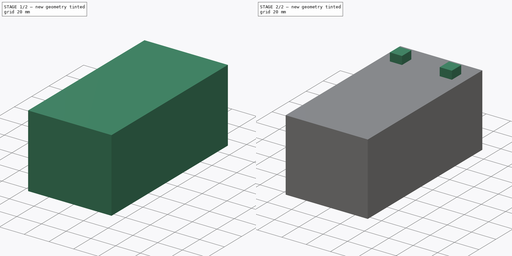
[diagram: build sequence overview — one tinted view per stage of 2, left to right]
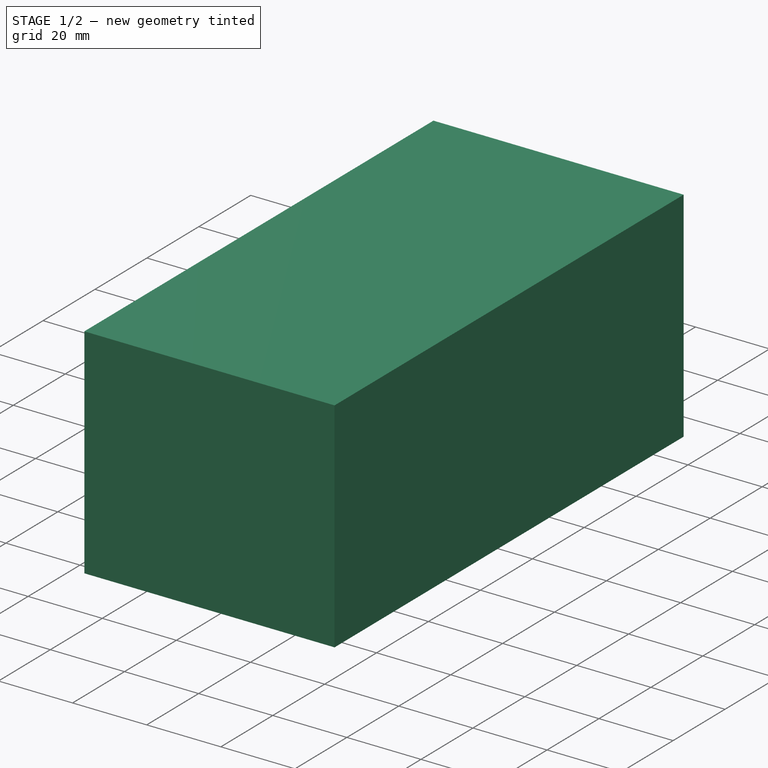
[diagram: stage 1 of 2 — iso view after this stage's code; geometry added in this stage tinted green]
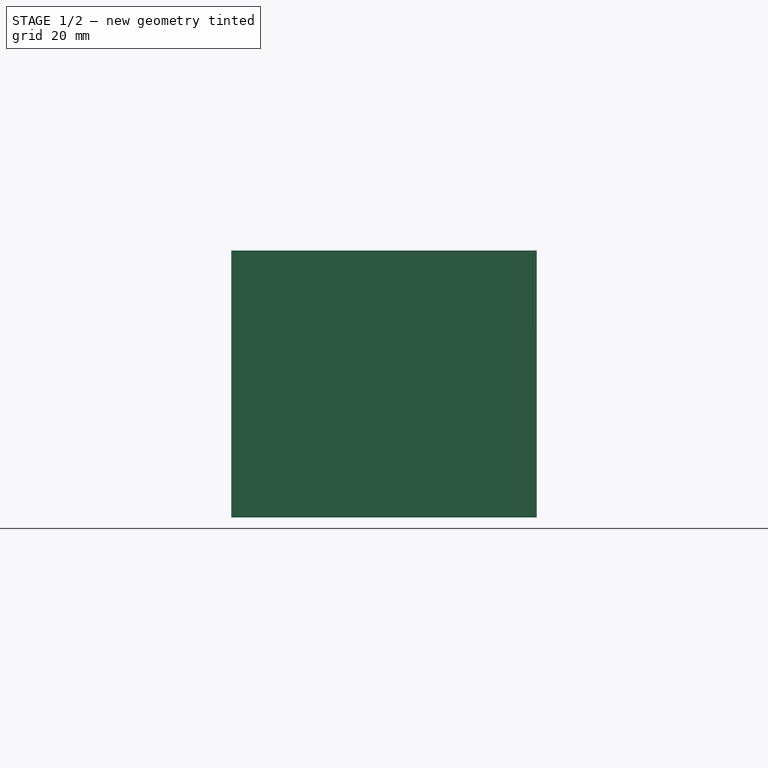
[diagram: stage 1 of 2 — front view after this stage's code; geometry added in this stage tinted green]
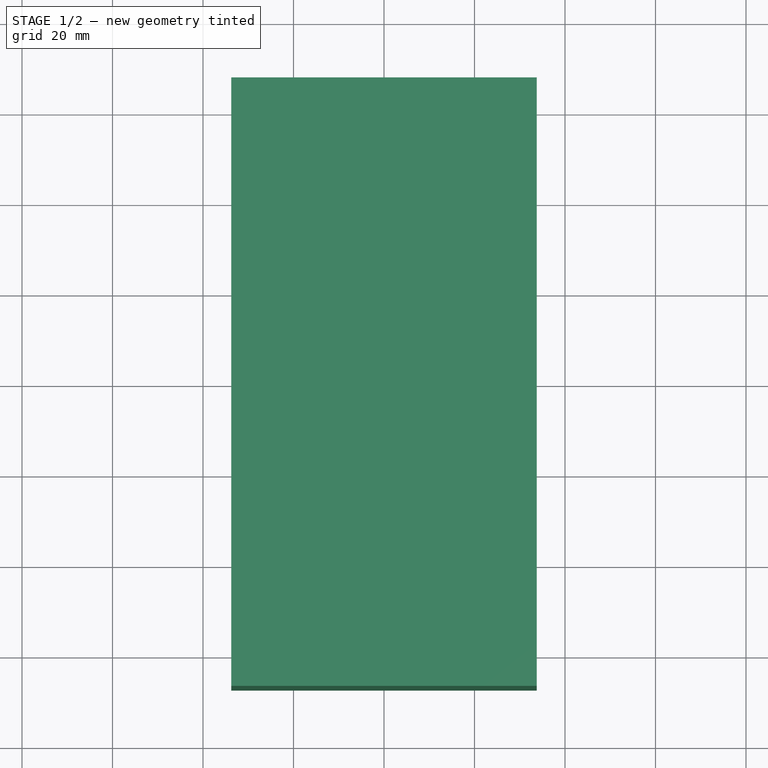
[diagram: stage 1 of 2 — top view after this stage's code; geometry added in this stage tinted green]
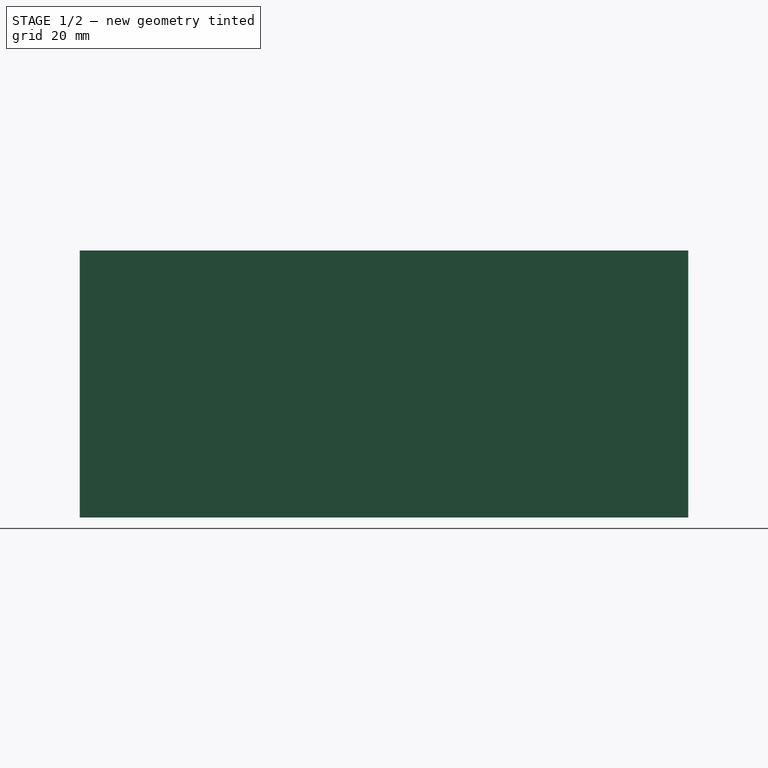
[diagram: stage 1 of 2 — right view after this stage's code; geometry added in this stage tinted green]
FCSTD DOCUMENT  (FreeCAD 0.18.4R)
Label: Battery_Lead_Acid_3.2Ah
License: All rights reserved
LicenseURL: http://en.wikipedia.org/wiki/All_rights_reserved
objects: Sketcher::SketchObject×2, PartDesign::Pad×2, PartDesign::Body×1, App::Part×1
note: 7 computed .brp shape members not serialized (recipe doc carries the construction recipe); baked Part::Feature solids carry a one-line shape summary decoded from their .brp

FEATURE [Sketcher::SketchObject] Sketch
  MapMode = 5
  Support = -> [XY_Plane001]
  sketch-geometry (4):
    g0: LineSegment StartX=-33.75 StartY=67.25 StartZ=0 EndX=33.75 EndY=67.25 EndZ=0
    g1: LineSegment StartX=33.75 StartY=67.25 StartZ=0 EndX=33.75 EndY=-67.25 EndZ=0
    g2: LineSegment StartX=33.75 StartY=-67.25 StartZ=0 EndX=-33.75 EndY=-67.25 EndZ=0
    g3: LineSegment StartX=-33.75 StartY=-67.25 StartZ=0 EndX=-33.75 EndY=67.25 EndZ=0
  constraints (11):
    c: Coincident(g0,g1)
    c: Coincident(g1,g2)
    c: Coincident(g2,g3)
    c: Coincident(g3,g0)
    c: Horizontal(g0)
    c: Horizontal(g2)
    c: Vertical(g1)
    c: Vertical(g3)
    c: Symmetric(g0,g1,g-1)
    c: DistanceX(g0,g0) = 67.5
    c: DistanceY(g3,g3) = 134.5
FEATURE [PartDesign::Pad] Pad
  Length = 59
  Length2 = 100
  Profile = -> Sketch
  Type = 0
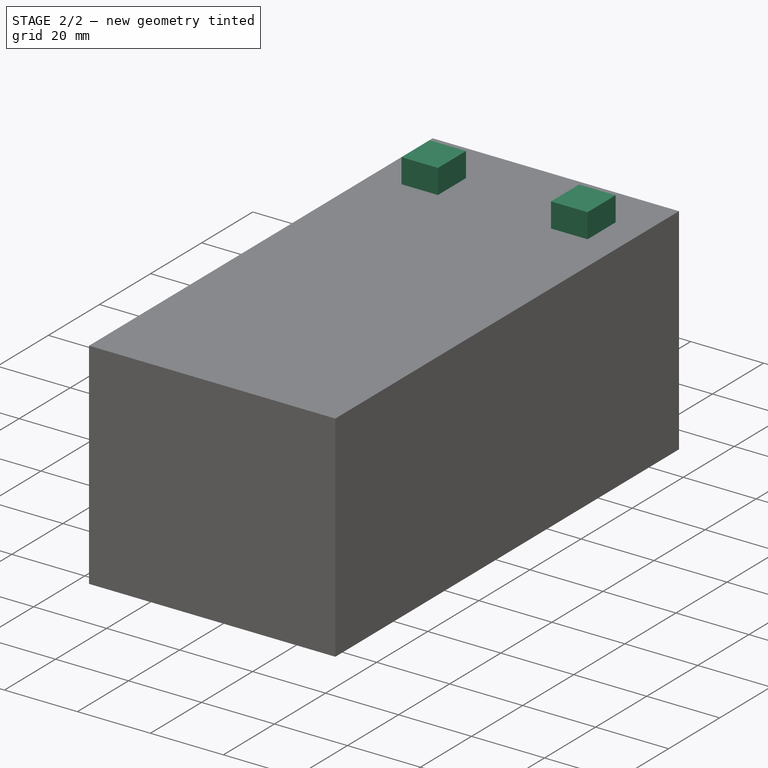
[diagram: stage 2 of 2 — iso view after this stage's code; geometry added in this stage tinted green]
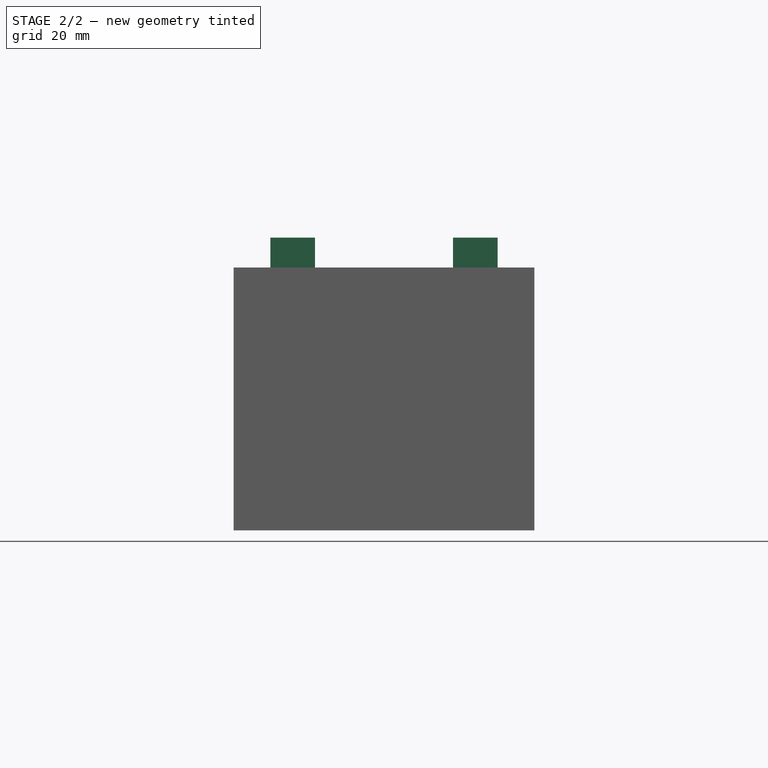
[diagram: stage 2 of 2 — front view after this stage's code; geometry added in this stage tinted green]
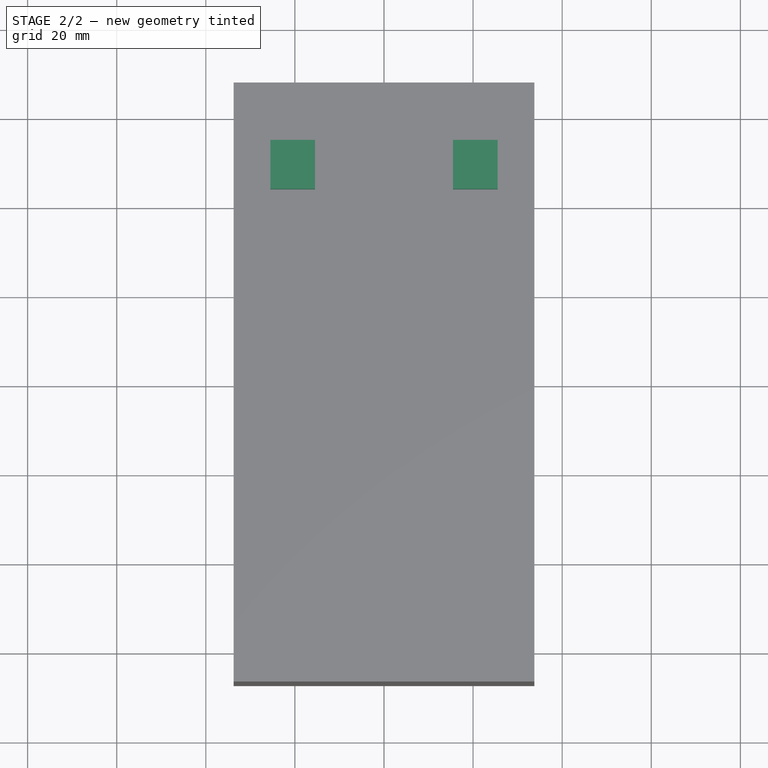
[diagram: stage 2 of 2 — top view after this stage's code; geometry added in this stage tinted green]
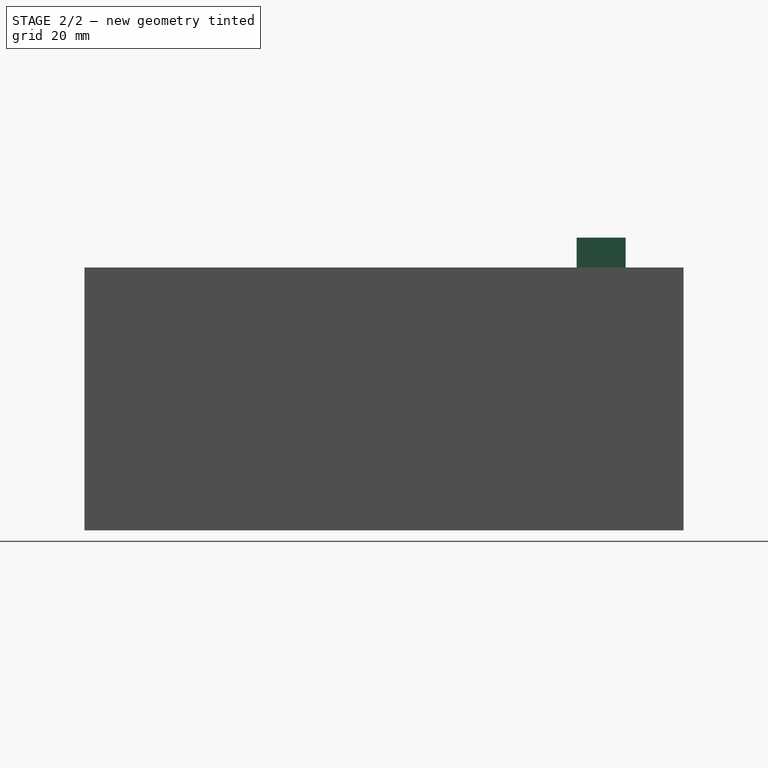
[diagram: stage 2 of 2 — right view after this stage's code; geometry added in this stage tinted green]
FEATURE [Sketcher::SketchObject] Sketch001
  MapMode = 5
  Placement = pos=(0,0,59) rot=(0,0,1;0rad)
  Support = -> [Pad]
  sketch-geometry (8):
    g0: LineSegment StartX=-25.5 StartY=54.25 StartZ=0 EndX=-15.5 EndY=54.25 EndZ=0
    g1: LineSegment StartX=-15.5 StartY=54.25 StartZ=0 EndX=-15.5 EndY=43.25 EndZ=0
    g2: LineSegment StartX=-15.5 StartY=43.25 StartZ=0 EndX=-25.5 EndY=43.25 EndZ=0
    g3: LineSegment StartX=-25.5 StartY=43.25 StartZ=0 EndX=-25.5 EndY=54.25 EndZ=0
    g4: LineSegment StartX=15.5 StartY=54.25 StartZ=0 EndX=25.5 EndY=54.25 EndZ=0
    g5: LineSegment StartX=25.5 StartY=54.25 StartZ=0 EndX=25.5 EndY=43.25 EndZ=0
    g6: LineSegment StartX=25.5 StartY=43.25 StartZ=0 EndX=15.5 EndY=43.25 EndZ=0
    g7: LineSegment StartX=15.5 StartY=43.25 StartZ=0 EndX=15.5 EndY=54.25 EndZ=0
  constraints (22):
    c: Coincident(g0,g1)
    c: Coincident(g1,g2)
    c: Coincident(g2,g3)
    c: Coincident(g3,g0)
    c: Horizontal(g0)
    c: Horizontal(g2)
    c: Vertical(g1)
    c: Vertical(g3)
    c: Coincident(g4,g5)
    c: Coincident(g5,g6)
    c: Coincident(g6,g7)
    c: Coincident(g7,g4)
    c: Horizontal(g4)
    c: Horizontal(g6)
    c: Vertical(g5)
    c: Vertical(g7)
    c: Symmetric(g1,g6,g-2)
    c: Symmetric(g0,g4,g-2)
    c: DistanceX(g0,g4) = 31
    c: DistanceX(g0,g4) = 51
    c: DistanceY(g3,g3) = 11
    c: DistanceY(g-1,g0) = 54.25
FEATURE [PartDesign::Pad] Pad001
  BaseFeature = -> Pad
  Length = 6.7
  Length2 = 100
  Profile = -> Sketch001
  Type = 0
FEATURE [PartDesign::Body] Body
  Group = -> [Sketch,Pad,Sketch001,Pad001]
  Origin = -> Origin001
  Tip = -> Pad001
FEATURE [App::Part] Part  label="Battery"
  Group = -> [Body]
  Origin = -> Origin
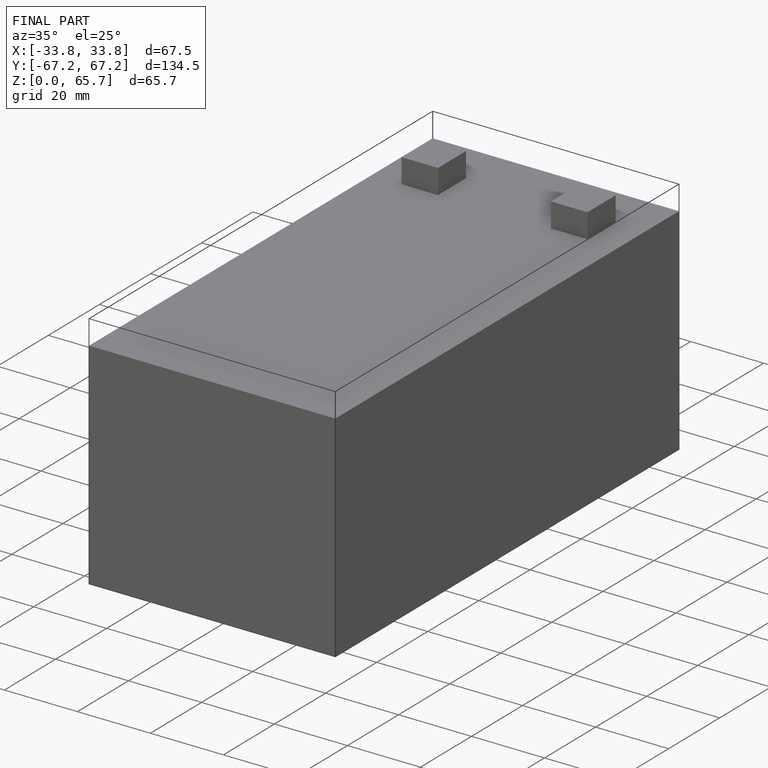
[diagram: finished part — iso view with bounding-box wireframe]
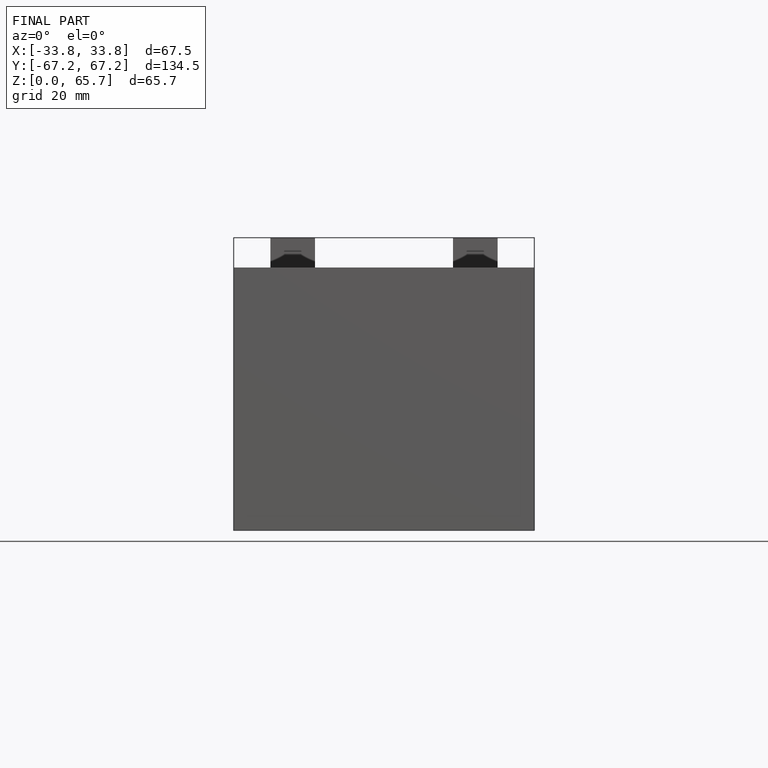
[diagram: finished part — front view with bounding-box wireframe]
